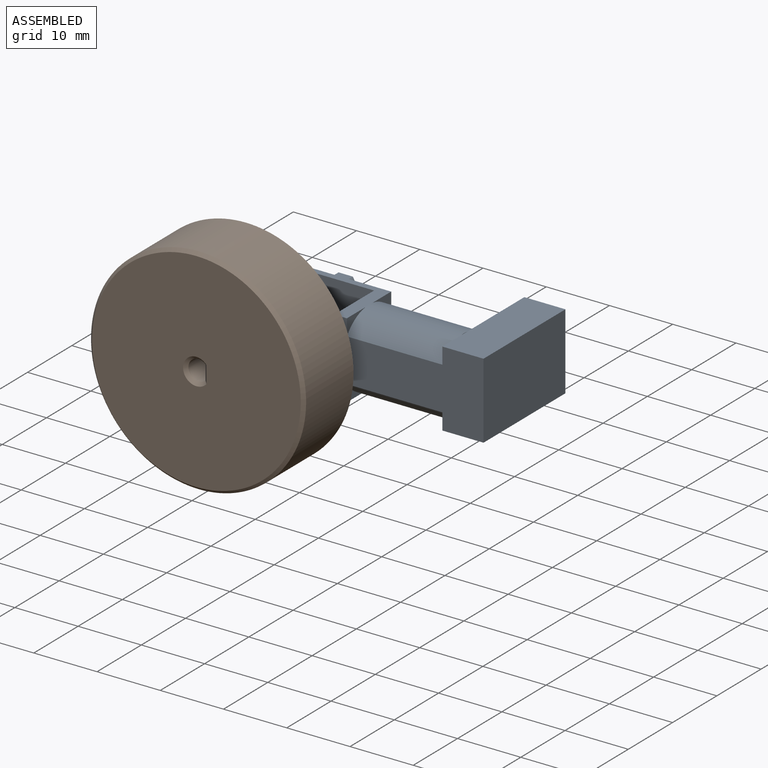
[diagram: assembled view]
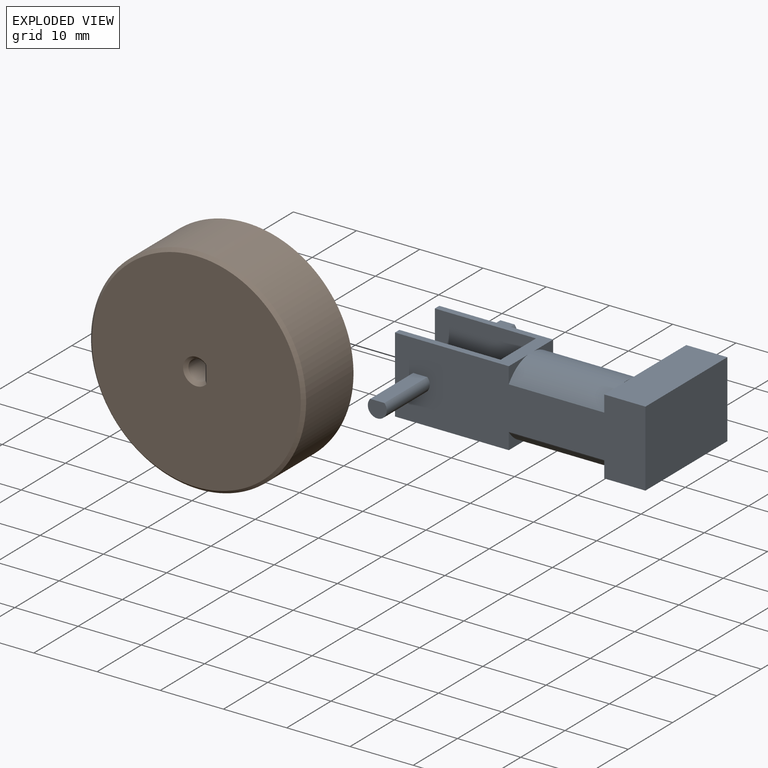
[diagram: exploded view]
GUIDED TOUR — FREECAD ASSEMBLY "robot-motor-holder"

This assembly has 2 components, labeled P0..P1 below (a component is one placed body or linked part; the same part can appear more than once), held together by 0 modeled joints plus 1 derived contact edge. A joint is a constraint between two components; its type names the relative motion it leaves free:
  CONTACT — a derived adjacency edge — the two components touch in the source model (clearance under 2% of the assembly's diagonal); it is measured from the geometry, not a modeled constraint.
Axis/direction vectors are unit vectors and 'through' points are millimeter coordinates, both in the assembly's world frame.

MATES
  1. CONTACT "contact_0_1": P0 <-> P1, contact direction (0.000, -1.000, 0.000) through (1.07, -5.50, -1.12) mm (derived from contact, not a modeled constraint)

ASSEMBLY ORDER
  1. P1 — the base component [order verified]
  2. P0 [order verified]
Order-tag legend:
  [order verified] — this step's position reverses a verified removal order: the component was checked to insert without passing through the ones already placed.

Of the 2 components, 2 carry a construction recipe — the FreeCAD feature program (sketches with constraints, then the solid features that consume them) that regenerates the part from scratch, quoted from this document or from the linked companion document it references; the rest are supplied as boundary geometry only. The tour below walks the components in assembly order: each is shown spotlighted twice — in the assembled view, then in the exploded view, where a leader line traces a displaced component back to its assembled socket (components that stay in place when exploded have no leader line; saturated green if recipe-attached, orange if geometry-only; every other component desaturated gray) — followed by its recipe or geometry summary and the mates that hold it.
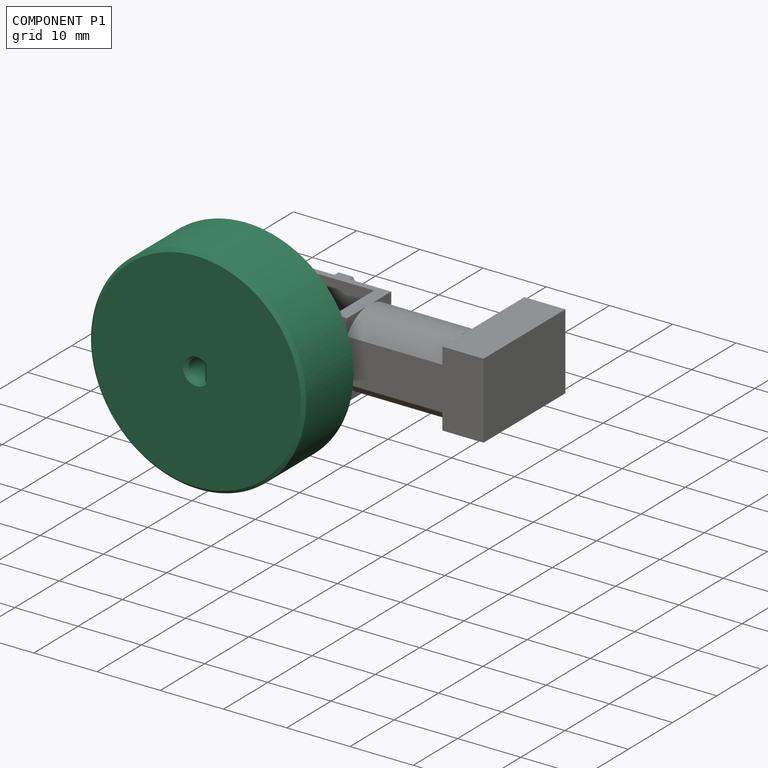
[diagram: component P1 — assembled]
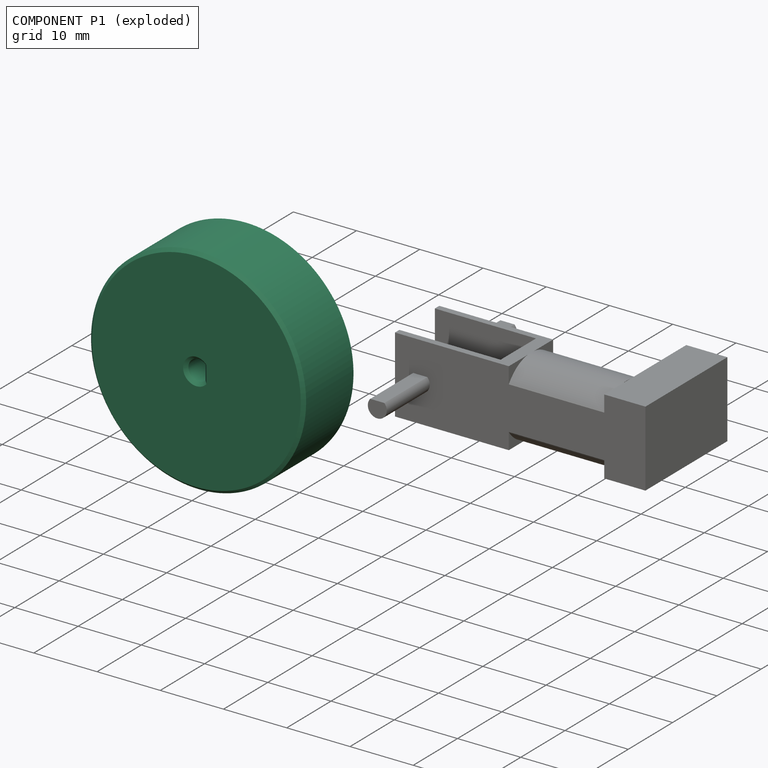
[diagram: component P1 — exploded]
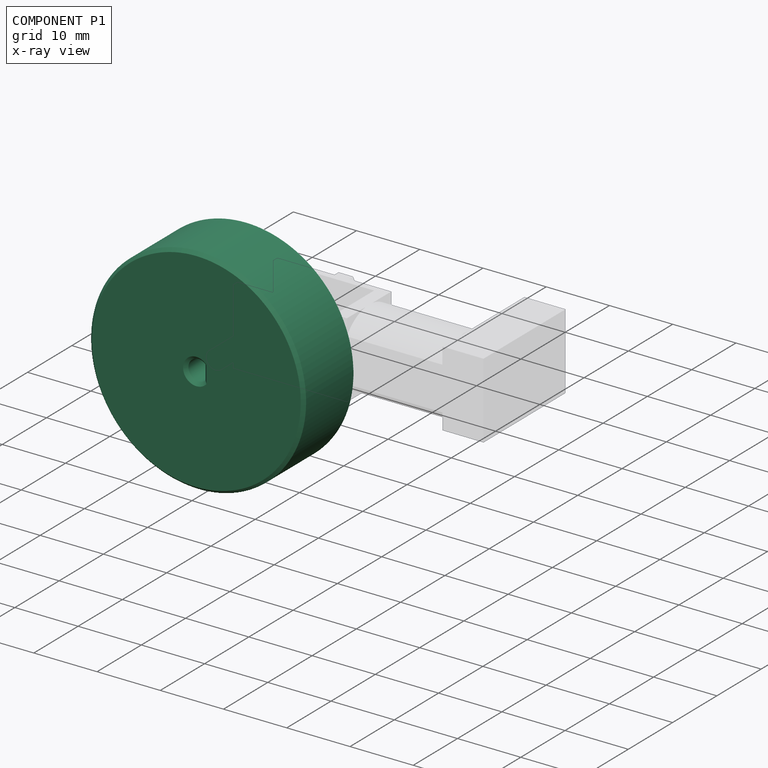
[diagram: component P1 — x-ray view]
COMPONENT P1 — same part as P0; its construction recipe is shown at P0.
Held by: resting contact with P0 (derived edge).
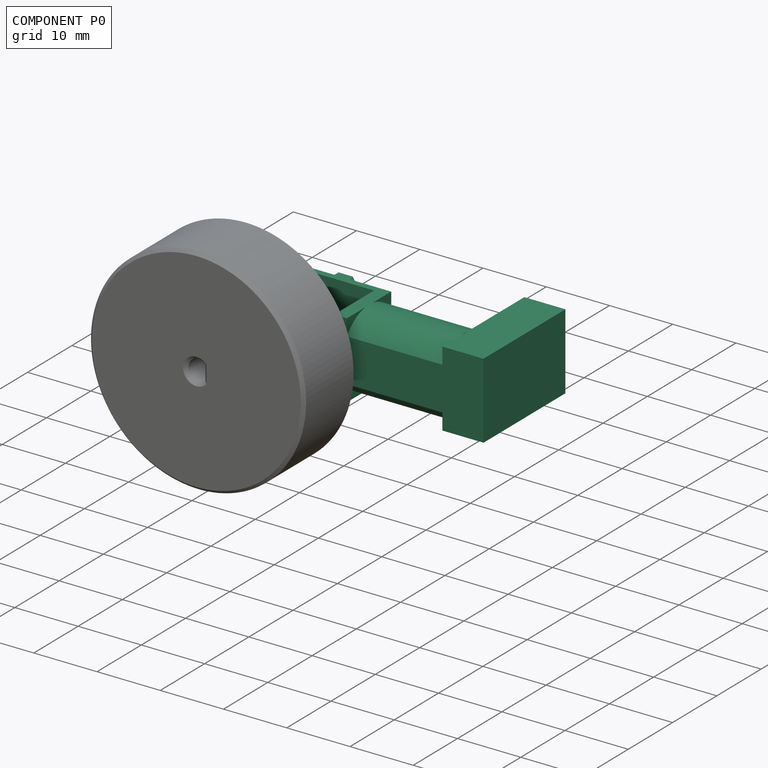
[diagram: component P0 — assembled]
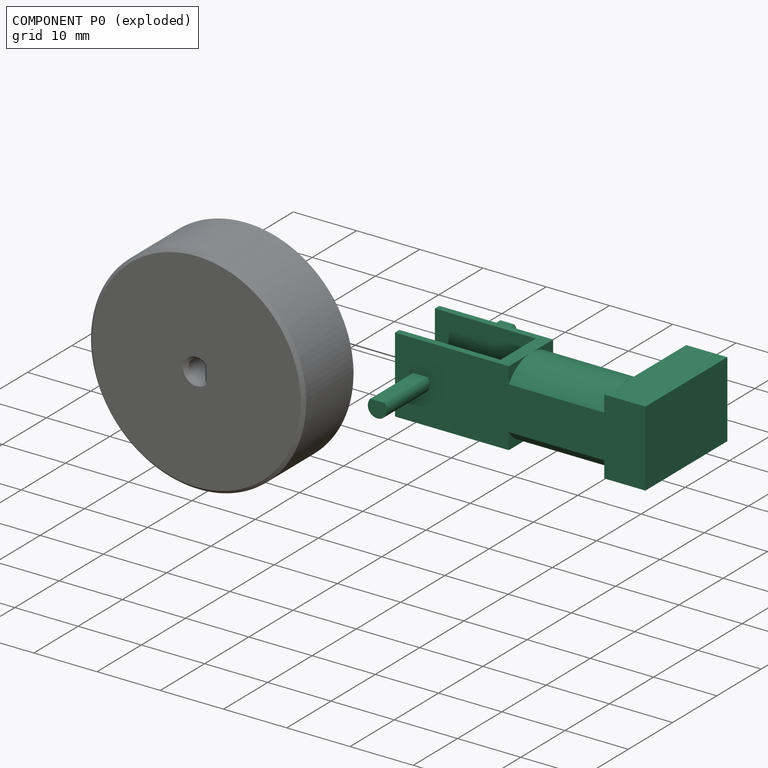
[diagram: component P0 — exploded]
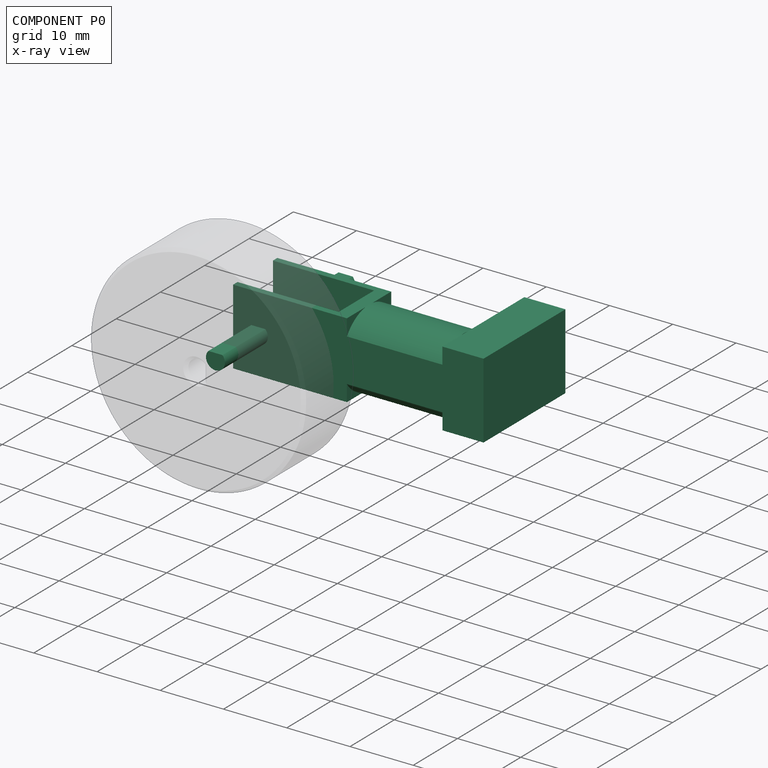
[diagram: component P0 — x-ray view]
COMPONENT P0 — recipe-attached ("motor", modeled in this document).
Held by: resting contact with P1 (derived edge).
Construction recipe (the document's own serialized feature program — sketch geometry with constraints, then the solid features built on it; lengths are millimeters unless a unit is written):

FEATURE [PartDesign::Plane] DatumPlane
  AttachmentOffset = pos=(0,0,-4.1) rot=(0,0,1;0rad)
  Length = 60
  MapMode = 5
  Placement = pos=(-4.1,9e-16,-9e-16) rot=(0.57735,0.57735,0.57735;2.0944rad)
  ResizeMode = 0
  Support = -> [YZ_Plane]
  Width = 60
FEATURE [Sketcher::SketchObject] Sketch
  FullyConstrained = true
  MapMode = 5
  Placement = pos=(-4.1,9e-16,-9e-16) rot=(0.57735,0.57735,0.57735;2.0944rad)
  Support = -> [DatumPlane]
  sketch-geometry (14):
    g0: LineSegment StartX=-5.1 StartY=7 StartZ=0 EndX=5.1 EndY=7 EndZ=0
    g1: LineSegment StartX=5.1 StartY=7 StartZ=0 EndX=5.1 EndY=-7 EndZ=0
    g2: LineSegment StartX=5.1 StartY=-7 StartZ=0 EndX=-5.1 EndY=-7 EndZ=0
    g3: LineSegment StartX=-5.1 StartY=-7 StartZ=0 EndX=-5.1 EndY=7 EndZ=0
    g4: LineSegment StartX=-5.1 StartY=7 StartZ=0 EndX=-5.1 EndY=6.1 EndZ=0
    g5: LineSegment StartX=-5.1 StartY=6.1 StartZ=0 EndX=-3.9 EndY=6.1 EndZ=0
    g6: LineSegment StartX=-3.9 StartY=6.1 StartZ=0 EndX=-3.9 EndY=-6.1 EndZ=0
    g7: LineSegment StartX=-3.9 StartY=-6.1 StartZ=0 EndX=-5.1 EndY=-6.1 EndZ=0
    g8: LineSegment StartX=-5.1 StartY=-6.1 StartZ=0 EndX=-5.1 EndY=-7 EndZ=0
    g9: LineSegment StartX=5.1 StartY=7 StartZ=0 EndX=5.1 EndY=6.1 EndZ=0
    g10: LineSegment StartX=5.1 StartY=6.1 StartZ=0 EndX=3.9 EndY=6.1 EndZ=0
    g11: LineSegment StartX=3.9 StartY=6.1 StartZ=0 EndX=3.9 EndY=-6.1 EndZ=0
    g12: LineSegment StartX=3.9 StartY=-6.1 StartZ=0 EndX=5.1 EndY=-6.1 EndZ=0
    g13: LineSegment StartX=5.1 StartY=-6.1 StartZ=0 EndX=5.1 EndY=-7 EndZ=0
  constraints (39):
    c: Coincident(g0,g1)
    c: Coincident(g1,g2)
    c: Coincident(g2,g3)
    c: Coincident(g3,g0)
    c: Horizontal(g0)
    c: Horizontal(g2)
    c: Symmetric(g0,g1,g-1)
    c: DistanceX(g0,g0) = 10.2
    c: DistanceY(g2,g0) = 14
    c: Coincident(g0,g4)
    c: PointOnObject(g4,g3)
    c: Vertical(g4)
    c: Coincident(g4,g5)
    c: Horizontal(g5)
    c: Coincident(g5,g6)
    c: Vertical(g6)
    c: Coincident(g6,g7)
    c: PointOnObject(g7,g3)
    c: Horizontal(g7)
    c: Coincident(g7,g8)
    c: Coincident(g8,g2)
    c: DistanceY(g4,g4) = 0.9
    c: Coincident(g0,g9)
    c: PointOnObject(g9,g1)
    c: Vertical(g9)
    c: Coincident(g9,g10)
    c: Horizontal(g10)
    c: Coincident(g10,g11)
    c: Vertical(g11)
    c: Coincident(g11,g12)
    c: PointOnObject(g12,g1)
    c: Horizontal(g12)
    c: Coincident(g12,g13)
    c: Coincident(g13,g2)
    c: Equal(g9,g4)
    c: Equal(g4,g8)
    c: Equal(g8,g13)
    c: Equal(g7,g12)
    c: DistanceX(g5,g5) = 1.2
FEATURE [PartDesign::Pad] Pad
  Direction = (1,-1e-16,1e-16)
  Length = 18.4
  Length2 = 10
  Placement = pos=(-4.1,1e-15,-1e-15) rot=(0.57735,0.57735,0.57735;2.0944rad)
  Profile = -> Sketch
  ReferenceAxis = -> Sketch [N_Axis]
  Type = 0
FEATURE [PartDesign::Plane] DatumPlane001
  AttachmentOffset = pos=(0,0,0) rot=(0,0,1;1.5708rad)
  Length = 60
  MapMode = 5
  Placement = pos=(-4.1,-3.9,-2.3e-15) rot=(1,0,0;1.5708rad)
  ResizeMode = 0
  Support = -> [Pad]
  Width = 60
FEATURE [Sketcher::SketchObject] Sketch001
  FullyConstrained = false
  MapMode = 5
  Placement = pos=(-4.1,9e-16,-9e-16) rot=(0.57735,0.57735,0.57735;2.0944rad)
  Support = -> [DatumPlane]
  sketch-geometry (4):
    g0: LineSegment StartX=-5.1 StartY=7 StartZ=0 EndX=5.1 EndY=7 EndZ=0
    g1: LineSegment StartX=5.1 StartY=7 StartZ=0 EndX=5.1 EndY=-7 EndZ=0
    g2: LineSegment StartX=5.1 StartY=-7 StartZ=0 EndX=-5.1 EndY=-7 EndZ=0
    g3: LineSegment StartX=-5.1 StartY=-7 StartZ=0 EndX=-5.1 EndY=7 EndZ=0
  constraints (11):
    c: Coincident(g0,g1)
    c: Coincident(g1,g2)
    c: Coincident(g2,g3)
    c: Coincident(g3,g0)
    c: Horizontal(g0)
    c: Horizontal(g2)
    c: Vertical(g1)
    c: Vertical(g3)
    c: DistanceX(g0,g0) = 10.2
    c: DistanceY(g1,g1) = 14
    c: DistanceX(g0,g-1) = 5.1
FEATURE [PartDesign::Pad] Pad001
  BaseFeature = -> Pad
  Direction = (1,-1e-16,1e-16)
  Length = 2
  Length2 = 10
  Placement = pos=(-4.1,1e-15,-1e-15) rot=(0.57735,0.57735,0.57735;2.0944rad)
  Profile = -> Sketch001
  ReferenceAxis = -> Sketch001 [N_Axis]
  Reversed = true
  Type = 0
FEATURE [Sketcher::SketchObject] Sketch002
  FullyConstrained = true
  MapMode = 5
  Placement = pos=(-4.1,-3.9,-2.3e-15) rot=(1,0,0;1.5708rad)
  Support = -> [DatumPlane001]
  sketch-geometry (21):
    g0: Circle CenterX=1.5 CenterY=4.6 CenterZ=0 NormalX=0 NormalY=0 NormalZ=1 AngleXU=0 Radius=1
    g1: Circle CenterX=1.5 CenterY=-4.6 CenterZ=0 NormalX=0 NormalY=0 NormalZ=1 AngleXU=0 Radius=1
    g2: LineSegment StartX=1.5 StartY=4.6 StartZ=0 EndX=1.5 EndY=-4.6 EndZ=0
    g3: LineSegment StartX=0 StartY=5.01421 StartZ=0 EndX=0.5 EndY=5.01421 EndZ=0
    g4: LineSegment StartX=0.5 StartY=5.01421 StartZ=0 EndX=1.08579 EndY=5.6 EndZ=0
    g5: LineSegment StartX=1.08579 StartY=5.6 StartZ=0 EndX=1.91421 EndY=5.6 EndZ=0
    g6: LineSegment StartX=1.91421 StartY=5.6 StartZ=0 EndX=2.5 EndY=5.01421 EndZ=0
    g7: LineSegment StartX=2.5 StartY=5.01421 StartZ=0 EndX=20 EndY=5.01421 EndZ=0
    g8: LineSegment StartX=20 StartY=5.01421 StartZ=0 EndX=20 EndY=-6.1 EndZ=0
    g9: LineSegment StartX=20 StartY=-6.1 StartZ=0 EndX=6.58579 EndY=-6.1 EndZ=0
    g10: LineSegment StartX=6.58579 StartY=-6.1 StartZ=0 EndX=5.5 EndY=-5.01421 EndZ=0
    g11: LineSegment StartX=5.5 StartY=-5.01421 StartZ=0 EndX=2.5 EndY=-5.01421 EndZ=0
    g12: LineSegment StartX=2.5 StartY=-5.01421 StartZ=0 EndX=1.91421 EndY=-5.6 EndZ=0
    g13: LineSegment StartX=1.91421 StartY=-5.6 StartZ=0 EndX=1.08579 EndY=-5.6 EndZ=0
    g14: LineSegment StartX=1.08579 StartY=-5.6 StartZ=0 EndX=0.5 EndY=-5.01421 EndZ=0
    g15: LineSegment StartX=0.5 StartY=-5.01421 StartZ=0 EndX=0 EndY=-5.01421 EndZ=0
    g16: LineSegment StartX=0 StartY=-5.01421 StartZ=0 EndX=0 EndY=5.01421 EndZ=0
    g17: LineSegment StartX=2.5 StartY=5.01421 StartZ=0 EndX=15.8 EndY=5.01421 EndZ=0
    g18: LineSegment StartX=15.8 StartY=5.01421 StartZ=0 EndX=15.8 EndY=6.1 EndZ=0
    g19: LineSegment StartX=15.8 StartY=6.1 StartZ=0 EndX=20 EndY=6.1 EndZ=0
    g20: LineSegment StartX=20 StartY=6.1 StartZ=0 EndX=20 EndY=5.01421 EndZ=0
  constraints (58):
    c: Coincident(g2,g0)
    c: Coincident(g2,g1)
    c: Equal(g0,g1)
    c: Symmetric(g0,g1,g-1)
    c: Diameter(g0) = 2
    c: DistanceY(g1,g0) = 9.2
    c: DistanceX(g-1,g0) = 1.5
    c: PointOnObject(g3,g-2)
    c: Horizontal(g3)
    c: Coincident(g3,g4)
    c: Tangent(g4,g0)
    c: Coincident(g4,g5)
    c: Horizontal(g5)
    c: Coincident(g5,g6)
    c: Tangent(g6,g0)
    c: Coincident(g6,g7)
    c: Horizontal(g7)
    c: Coincident(g7,g8)
    c: Vertical(g8)
    c: Coincident(g8,g9)
    c: Horizontal(g9)
    c: Coincident(g9,g10)
    c: Coincident(g10,g11)
    c: Horizontal(g11)
    c: Coincident(g11,g12)
    c: Tangent(g12,g1)
    c: Coincident(g12,g13)
    c: Horizontal(g13)
    c: Coincident(g13,g14)
    c: Tangent(g14,g1)
    c: Coincident(g14,g15)
    c: Horizontal(g15)
    c: Coincident(g15,g16)
    c: Coincident(g16,g3)
    c: Symmetric(g3,g15,g-1)
    c: Angle(g4,g3) = 2.35619
    c: Equal(g4,g5)
    c: Equal(g5,g6)
    c: Tangent(g5,g0)
    c: PointOnObject(g3,g7)
    c: PointOnObject(g14,g11)
    c: Equal(g14,g13)
    c: Equal(g13,g12)
    c: Angle(g15,g14) = 2.35619
    c: DistanceX(g11,g11) = 3
    c: Angle(g9,g10) = 2.35619
    c: DistanceY(g9,g-1) = 6.1
    c: DistanceX(g-1,g7) = 20
    c: Coincident(g6,g17)
    c: PointOnObject(g17,g7)
    c: Coincident(g17,g18)
    c: Vertical(g18)
    c: Coincident(g18,g19)
    c: Horizontal(g19)
    c: Coincident(g19,g20)
    c: Coincident(g20,g8)
    c: Symmetric(g8,g19,g-1)
    c: DistanceX(g-1,g18) = 15.8
FEATURE [PartDesign::Pocket] Pocket
  BaseFeature = -> Pad001
  Direction = (2e-16,1,2e-16)
  Length = 5
  Length2 = 5
  Placement = pos=(-4.1,1e-15,-1e-15) rot=(0.57735,0.57735,0.57735;2.0944rad)
  Profile = -> Sketch002
  ReferenceAxis = -> Sketch002 [N_Axis]
  Type = 1
FEATURE [PartDesign::Plane] DatumPlane002
  Length = 60
  MapMode = 5
  Placement = pos=(14.3,1e-15,1.6e-15) rot=(0.57735,0.57735,0.57735;2.0944rad)
  ResizeMode = 0
  Support = -> [Pad]
  Width = 60
FEATURE [Sketcher::SketchObject] Sketch003
  FullyConstrained = true
  MapMode = 5
  Placement = pos=(14.3,1e-15,1.6e-15) rot=(0.57735,0.57735,0.57735;2.0944rad)
  Support = -> [DatumPlane002]
  sketch-geometry (8):
    g0: LineSegment StartX=-5.1 StartY=7 StartZ=0 EndX=5.1 EndY=7 EndZ=0
    g1: LineSegment StartX=5.1 StartY=7 StartZ=0 EndX=5.1 EndY=6.1 EndZ=0
    g2: LineSegment StartX=5.1 StartY=6.1 StartZ=0 EndX=-5.1 EndY=6.1 EndZ=0
    g3: LineSegment StartX=-5.1 StartY=6.1 StartZ=0 EndX=-5.1 EndY=7 EndZ=0
    g4: LineSegment StartX=-5.1 StartY=-6.1 StartZ=0 EndX=5.1 EndY=-6.1 EndZ=0
    g5: LineSegment StartX=5.1 StartY=-6.1 StartZ=0 EndX=5.1 EndY=-7 EndZ=0
    g6: LineSegment StartX=5.1 StartY=-7 StartZ=0 EndX=-5.1 EndY=-7 EndZ=0
    g7: LineSegment StartX=-5.1 StartY=-7 StartZ=0 EndX=-5.1 EndY=-6.1 EndZ=0
  constraints (22):
    c: Coincident(g0,g1)
    c: Coincident(g1,g2)
    c: Coincident(g2,g3)
    c: Coincident(g3,g0)
    c: Horizontal(g2)
    c: Vertical(g1)
    c: Vertical(g3)
    c: Coincident(g4,g5)
    c: Coincident(g5,g6)
    c: Coincident(g6,g7)
    c: Coincident(g7,g4)
    c: Horizontal(g4)
    c: Horizontal(g6)
    c: Vertical(g5)
    c: Vertical(g7)
    c: Equal(g3,g7)
    c: Equal(g4,g2)
    c: Symmetric(g0,g0,g-2)
    c: Symmetric(g0,g6,g-1)
    c: DistanceX(g0,g0) = 10.2
    c: DistanceY(g5,g0) = 14
    c: DistanceY(g1,g1) = 0.9
FEATURE [PartDesign::Plane] DatumPlane003
  AttachmentOffset = pos=(0,0,5) rot=(0,0,1;0rad)
  Length = 60
  MapMode = 5
  Placement = pos=(19.3,2.1e-15,2.7e-15) rot=(0.57735,0.57735,0.57735;2.0944rad)
  ResizeMode = 0
  Support = -> [DatumPlane002]
  Width = 60
FEATURE [Sketcher::SketchObject] Sketch004
  FullyConstrained = true
  MapMode = 5
  Placement = pos=(19.3,2.1e-15,2.7e-15) rot=(0.57735,0.57735,0.57735;2.0944rad)
  Support = -> [DatumPlane003]
  sketch-geometry (8):
    g0: ArcOfCircle CenterX=0 CenterY=0 CenterZ=0 NormalX=0 NormalY=0 NormalZ=1 AngleXU=0 Radius=6.1 StartAngle=0.580724 EndAngle=2.56087
    g1: ArcOfCircle CenterX=0 CenterY=0 CenterZ=0 NormalX=0 NormalY=0 NormalZ=1 AngleXU=0 Radius=6.1 StartAngle=3.72232 EndAngle=5.70246
    g2: LineSegment StartX=-5.1 StartY=3.34664 StartZ=0 EndX=-5.1 EndY=7 EndZ=0
    g3: LineSegment StartX=-5.1 StartY=7 StartZ=0 EndX=5.1 EndY=7 EndZ=0
    g4: LineSegment StartX=5.1 StartY=7 StartZ=0 EndX=5.1 EndY=3.34664 EndZ=0
    g5: LineSegment StartX=5.1 StartY=-3.34664 StartZ=0 EndX=5.1 EndY=-7 EndZ=0
    g6: LineSegment StartX=5.1 StartY=-7 StartZ=0 EndX=-5.1 EndY=-7 EndZ=0
    g7: LineSegment StartX=-5.1 StartY=-7 StartZ=0 EndX=-5.1 EndY=-3.34664 EndZ=0
  constraints (24):
    c: Coincident(g0,g-1)
    c: Coincident(g1,g0)
    c: Equal(g1,g0)
    c: Coincident(g0,g2)
    c: Coincident(g2,g3)
    c: Horizontal(g3)
    c: Coincident(g3,g4)
    c: Coincident(g4,g0)
    c: Coincident(g1,g5)
    c: Coincident(g5,g6)
    c: Coincident(g6,g7)
    c: Coincident(g7,g1)
    c: Vertical(g2)
    c: Vertical(g4)
    c: Vertical(g5)
    c: Vertical(g7)
    c: Horizontal(g6)
    c: Equal(g6,g3)
    c: Equal(g2,g4)
    c: Equal(g4,g7)
    c: Equal(g7,g5)
    c: DistanceX(g3,g3) = 10.2
    c: DistanceY(g5,g3) = 14
    c: Diameter(g0) = 12.2
FEATURE [PartDesign::AdditiveLoft] AdditiveLoft
  BaseFeature = -> Pocket
  Closed = false
  Placement = pos=(-4.1,1e-15,-1e-15) rot=(0.57735,0.57735,0.57735;2.0944rad)
  Profile = -> Sketch003
  Ruled = false
  Sections = -> [Sketch004]
FEATURE [PartDesign::Pad] Pad002
  BaseFeature = -> AdditiveLoft
  Direction = (1,0,-2e-16)
  Length = 8
  Length2 = 10
  Placement = pos=(-4.1,1e-15,-1e-15) rot=(0.57735,0.57735,0.57735;2.0944rad)
  Profile = -> Sketch004
  ReferenceAxis = -> Sketch004 [N_Axis]
  Type = 0
FEATURE [PartDesign::Mirrored] Mirrored
  BaseFeature = -> Pad002
  MirrorPlane = -> Sketch004 [H_Axis]
  Originals = -> [Pad002,AdditiveLoft]
  Placement = pos=(-4.1,1e-15,-1e-15) rot=(0.57735,0.57735,0.57735;2.0944rad)
FEATURE [PartDesign::Plane] DatumPlane004
  AttachmentOffset = pos=(0,0,0) rot=(0,0,1;1.5708rad)
  Length = 60
  MapMode = 5
  Placement = pos=(-4.1,2e-16,7) rot=(0,0,1;0rad)
  ResizeMode = 0
  Support = -> [Pad]
  Width = 60
FEATURE [PartDesign::Plane] DatumPlane005
  AttachmentOffset = pos=(0,0,0.5) rot=(0,0,1;0rad)
  Length = 60
  MapMode = 5
  Placement = pos=(0.5,-1e-16,1e-16) rot=(0.57735,0.57735,0.57735;2.0944rad)
  ResizeMode = 0
  Support = -> [YZ_Plane]
  Width = 60
FEATURE [Sketcher::SketchObject] Sketch005
  FullyConstrained = true
  MapMode = 5
  Placement = pos=(0.5,-1e-16,1e-16) rot=(0.57735,0.57735,0.57735;2.0944rad)
  Support = -> [DatumPlane005]
  sketch-geometry (8):
    g0: LineSegment StartX=0 StartY=8.73205 StartZ=0 EndX=-1 EndY=7 EndZ=0
    g1: LineSegment StartX=-1 StartY=7 StartZ=0 EndX=1 EndY=7 EndZ=0
    g2: LineSegment StartX=1 StartY=7 StartZ=0 EndX=0 EndY=8.73205 EndZ=0
    g3: Circle CenterX=0 CenterY=7.57735 CenterZ=0 NormalX=0 NormalY=0 NormalZ=1 AngleXU=0 Radius=1.1547
    g4: LineSegment StartX=0 StartY=-8.73205 StartZ=0 EndX=1 EndY=-7 EndZ=0
    g5: LineSegment StartX=1 StartY=-7 StartZ=0 EndX=-1 EndY=-7 EndZ=0
    g6: LineSegment StartX=-1 StartY=-7 StartZ=0 EndX=0 EndY=-8.73205 EndZ=0
    g7: Circle CenterX=0 CenterY=-7.57735 CenterZ=0 NormalX=0 NormalY=0 NormalZ=1 AngleXU=0 Radius=1.1547
  constraints (23):
    c: Coincident(g0,g1)
    c: Coincident(g1,g2)
    c: Coincident(g2,g0)
    c: Equal(g0,g1)
    c: Equal(g0,g2)
    c: PointOnObject(g0,g3)
    c: PointOnObject(g1,g3)
    c: PointOnObject(g2,g3)
    c: PointOnObject(g3,g-2)
    c: PointOnObject(g2,g-2)
    c: Coincident(g4,g5)
    c: Coincident(g5,g6)
    c: Coincident(g6,g4)
    c: Equal(g4,g5)
    c: Equal(g4,g6)
    c: PointOnObject(g4,g7)
    c: PointOnObject(g5,g7)
    c: PointOnObject(g6,g7)
    c: PointOnObject(g6,g-2)
    c: Equal(g7,g3)
    c: Symmetric(g7,g3,g-1)
    c: DistanceX(g1,g1) = 2
    c: DistanceY(g4,g1) = 14
FEATURE [PartDesign::Pad] Pad003
  BaseFeature = -> Mirrored
  Direction = (1,-1e-16,1e-16)
  Length = 21
  Length2 = 10
  Placement = pos=(-4.1,1e-15,-1e-15) rot=(0.57735,0.57735,0.57735;2.0944rad)
  Profile = -> Sketch005
  ReferenceAxis = -> Sketch005 [N_Axis]
  Type = 0
FEATURE [Sketcher::SketchObject] Sketch006
  FullyConstrained = true
  MapMode = 5
  Placement = pos=(-4.1,9e-16,-9e-16) rot=(0.57735,0.57735,0.57735;2.0944rad)
  Support = -> [DatumPlane]
  sketch-geometry (8):
    g0: LineSegment StartX=-5 StartY=6.1 StartZ=0 EndX=5 EndY=6.1 EndZ=0
    g1: LineSegment StartX=5 StartY=6.1 StartZ=0 EndX=5 EndY=6 EndZ=0
    g2: LineSegment StartX=5 StartY=6 StartZ=0 EndX=-5 EndY=6 EndZ=0
    g3: LineSegment StartX=-5 StartY=6 StartZ=0 EndX=-5 EndY=6.1 EndZ=0
    g4: LineSegment StartX=-5 StartY=-6 StartZ=0 EndX=5 EndY=-6 EndZ=0
    g5: LineSegment StartX=5 StartY=-6 StartZ=0 EndX=5 EndY=-6.1 EndZ=0
    g6: LineSegment StartX=5 StartY=-6.1 StartZ=0 EndX=-5 EndY=-6.1 EndZ=0
    g7: LineSegment StartX=-5 StartY=-6.1 StartZ=0 EndX=-5 EndY=-6 EndZ=0
  constraints (21):
    c: Coincident(g0,g1)
    c: Coincident(g1,g2)
    c: Coincident(g2,g3)
    c: Coincident(g3,g0)
    c: Horizontal(g2)
    c: Vertical(g1)
    c: Vertical(g3)
    c: Coincident(g4,g5)
    c: Coincident(g5,g6)
    c: Coincident(g6,g7)
    c: Coincident(g7,g4)
    c: Vertical(g5)
    c: Vertical(g7)
    c: Symmetric(g6,g5,g-2)
    c: Symmetric(g0,g0,g-2)
    c: DistanceX(g0,g0) = 10
    c: Equal(g3,g7)
    c: DistanceY(g7,g7) = 0.1
    c: Symmetric(g4,g2,g-1)
    c: DistanceY(g6,g0) = 12.2
    c: Horizontal(g4)
FEATURE [PartDesign::Pocket] Pocket001
  BaseFeature = -> Pad003
  Direction = (-1,1e-16,-1e-16)
  Length = 16
  Length2 = 5
  Placement = pos=(-4.1,1e-15,-1e-15) rot=(0.57735,0.57735,0.57735;2.0944rad)
  Profile = -> Sketch006
  ReferenceAxis = -> Sketch006 [N_Axis]
  Reversed = true
  Type = 0
FEATURE [PartDesign::Body] Body  label="motor-holder"
  Group = -> [DatumPlane,Sketch,Pad,DatumPlane001,Sketch001,Pad001,Sketch002,Pocket,DatumPlane002,Sketch003,DatumPlane003,Sketch004,AdditiveLoft,Pad002,Mirrored,DatumPlane004,DatumPlane005,Sketch005,Pad003,Sketch006,Pocket001]
  Origin = -> Origin
  Tip = -> Pocket001
PROVENANCE & LICENSES
Assembly and component geometry: a FreeCAD (.FCStd) document from a public repository crawl; components, placements and joints were extracted with FreeCAD and each solid tessellated.
Construction recipes: the document's own serialized feature recipes (and, for linked parts, the recipes of companion documents from the same project).
License: gpl-3.0.
Joints: native FreeCAD joints and A2plus constraints are mapped to standard mate types; edges marked 'derived from contact' connect touching components and are measured from the geometry, not modeled.
Verification: 2 of this assembly's 2 components carry a construction recipe (2 from this document itself); the rest are geometry-only. Every component's tessellation passed the extraction mesh gates (mesh-volume checksum against the B-rep where available, bounding-box inflation <= 2%).
Renders: orthographic iso camera (az 35 / el 25); the floor grid conveys scale (grid pitch printed in each image; no ruler). In the exploded view each component is displaced by its stored offset vector: the offsets alone carry the explosion direction (mate normal/axis signs are not orientation cues and do not encode it), and separation distances are assigned per mate-chain, not proportionally to assembly-order depth.
